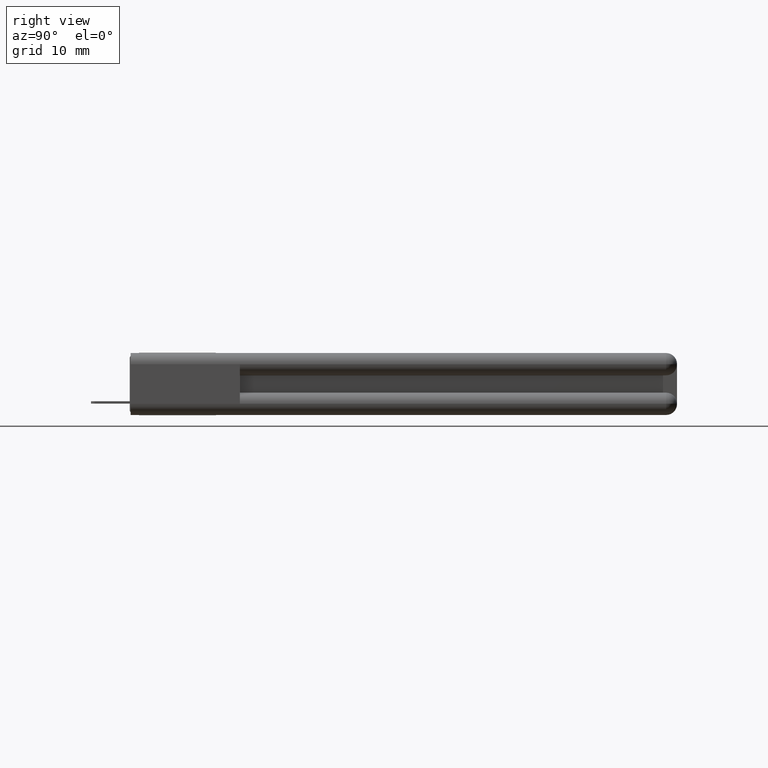
[diagram: clean part render]
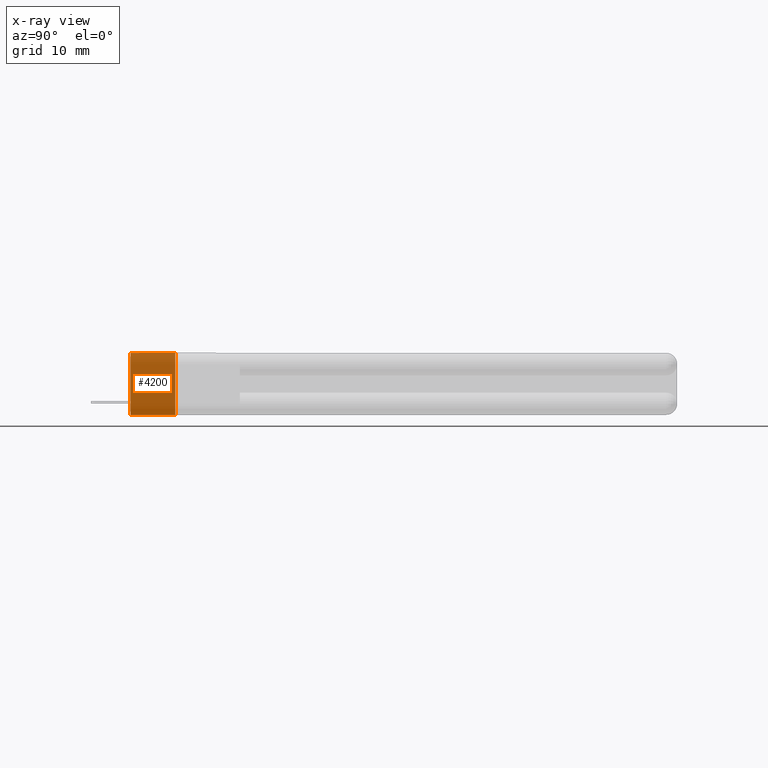
[diagram: x-ray — body ghosted, one internal face saturated and labeled with its STEP entity id]
A machine part, right view, then the same camera in x-ray: the body is ghosted and one INTERNAL B-rep face — a face not visible from any outside direction — is saturated and labeled: STEP entity #4200.
In plain terms, the highlighted planar face has unit normal (1, -0, 0).
Its self-contained STEP definition (entity closure, byte-faithful):
#284 = DIRECTION ( 'NONE',  ( 5.726536043434383500E-016, 1.000000000000000000, -2.334284690065039000E-016 ) ) ;
#369 = ORIENTED_EDGE ( 'NONE', *, *, #8968, .F. ) ;
#721 = LINE ( 'NONE', #1726, #8838 ) ;
#883 = AXIS2_PLACEMENT_3D ( 'NONE', #6231, #2377, #284 ) ;
#1352 = VECTOR ( 'NONE', #11531, 39.37007874015748100 ) ;
#1545 = LINE ( 'NONE', #2323, #10625 ) ;
#1641 = VERTEX_POINT ( 'NONE', #11620 ) ;
#1726 = CARTESIAN_POINT ( 'NONE',  ( 0.2650000000000033400, 0.2450000000000000500, -8.878505979408856000E-016 ) ) ;
#2164 = ORIENTED_EDGE ( 'NONE', *, *, #4829, .T. ) ;
#2323 = CARTESIAN_POINT ( 'NONE',  ( 0.2650000000000063400, 0.2450000000000000500, -0.3400000000000031900 ) ) ;
#2377 = DIRECTION ( 'NONE',  ( 1.000000000000000000, -5.726536043434383500E-016, 4.510281037539698400E-017 ) ) ;
#2609 = VERTEX_POINT ( 'NONE', #9655 ) ;
#2696 = VECTOR ( 'NONE', #8179, 39.37007874015748100 ) ;
#3019 = LINE ( 'NONE', #6167, #2696 ) ;
#3205 = CARTESIAN_POINT ( 'NONE',  ( 0.2650000000000033400, 1.952844464220938100E-016, -8.878505979408856000E-016 ) ) ;
#3344 = EDGE_CURVE ( 'NONE', #9426, #9492, #721, .T. ) ;
#3411 = CARTESIAN_POINT ( 'NONE',  ( 0.2650000000000033400, 0.2450000000000000500, -8.878505979408856000E-016 ) ) ;
#3598 = CARTESIAN_POINT ( 'NONE',  ( 0.2650000000000033400, 2.785204399790518600E-016, -0.3400000000000031900 ) ) ;
#4200 = ADVANCED_FACE ( 'NONE', ( #12107 ), #8376, .T. ) ;
#4633 = DIRECTION ( 'NONE',  ( 5.726536043434383500E-016, 1.000000000000000000, -2.334284690065039000E-016 ) ) ;
#4784 = LINE ( 'NONE', #3598, #1352 ) ;
#4829 = EDGE_CURVE ( 'NONE', #2609, #9492, #3019, .T. ) ;
#6167 = CARTESIAN_POINT ( 'NONE',  ( 0.2650000000000063400, 0.2450000000000000500, -0.3400000000000031900 ) ) ;
#6231 = CARTESIAN_POINT ( 'NONE',  ( 0.2650000000000063400, 0.2450000000000000500, -0.3400000000000031900 ) ) ;
#7563 = ORIENTED_EDGE ( 'NONE', *, *, #11433, .T. ) ;
#8179 = DIRECTION ( 'NONE',  ( 4.510281037539688600E-017, -2.334284690065025700E-016, 1.000000000000000000 ) ) ;
#8333 = ORIENTED_EDGE ( 'NONE', *, *, #3344, .F. ) ;
#8376 = PLANE ( 'NONE',  #883 ) ;
#8838 = VECTOR ( 'NONE', #4633, 39.37007874015748100 ) ;
#8897 = EDGE_LOOP ( 'NONE', ( #8333, #369, #7563, #2164 ) ) ;
#8968 = EDGE_CURVE ( 'NONE', #1641, #9426, #4784, .T. ) ;
#9426 = VERTEX_POINT ( 'NONE', #3205 ) ;
#9492 = VERTEX_POINT ( 'NONE', #3411 ) ;
#9655 = CARTESIAN_POINT ( 'NONE',  ( 0.2650000000000063400, 0.2450000000000000500, -0.3400000000000031900 ) ) ;
#10625 = VECTOR ( 'NONE', #11339, 39.37007874015748100 ) ;
#11339 = DIRECTION ( 'NONE',  ( 5.726536043434383500E-016, 1.000000000000000000, -2.334284690065039000E-016 ) ) ;
#11433 = EDGE_CURVE ( 'NONE', #1641, #2609, #1545, .T. ) ;
#11531 = DIRECTION ( 'NONE',  ( 4.510281037539688600E-017, -2.334284690065025700E-016, 1.000000000000000000 ) ) ;
#11620 = CARTESIAN_POINT ( 'NONE',  ( 0.2650000000000033400, 2.785204399790518600E-016, -0.3400000000000031900 ) ) ;
#12107 = FACE_OUTER_BOUND ( 'NONE', #8897, .T. ) ;